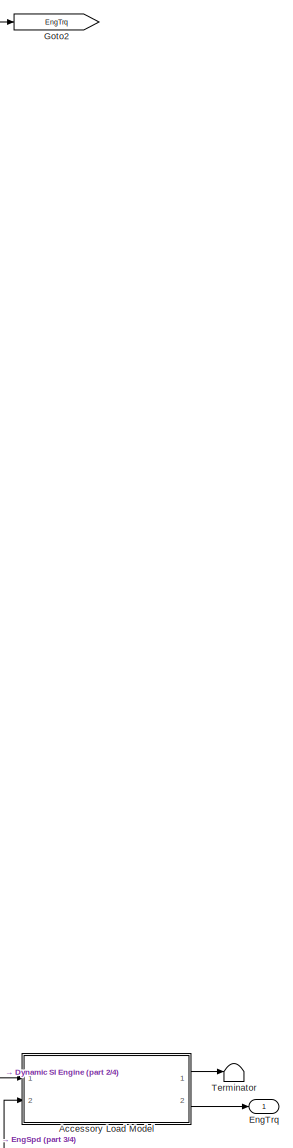
[diagram: root canvas - part 1/4, middle right region]
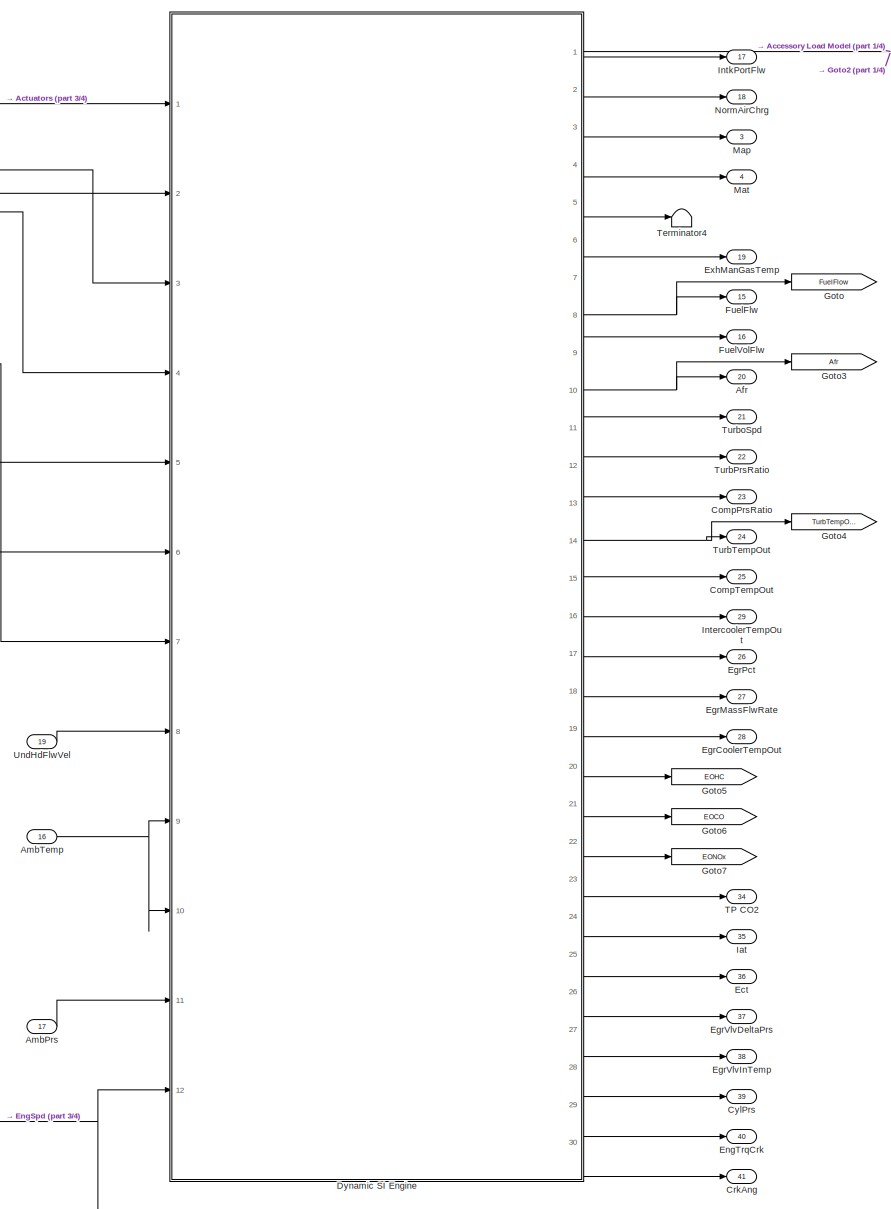
[diagram: root canvas - part 2/4, central region]
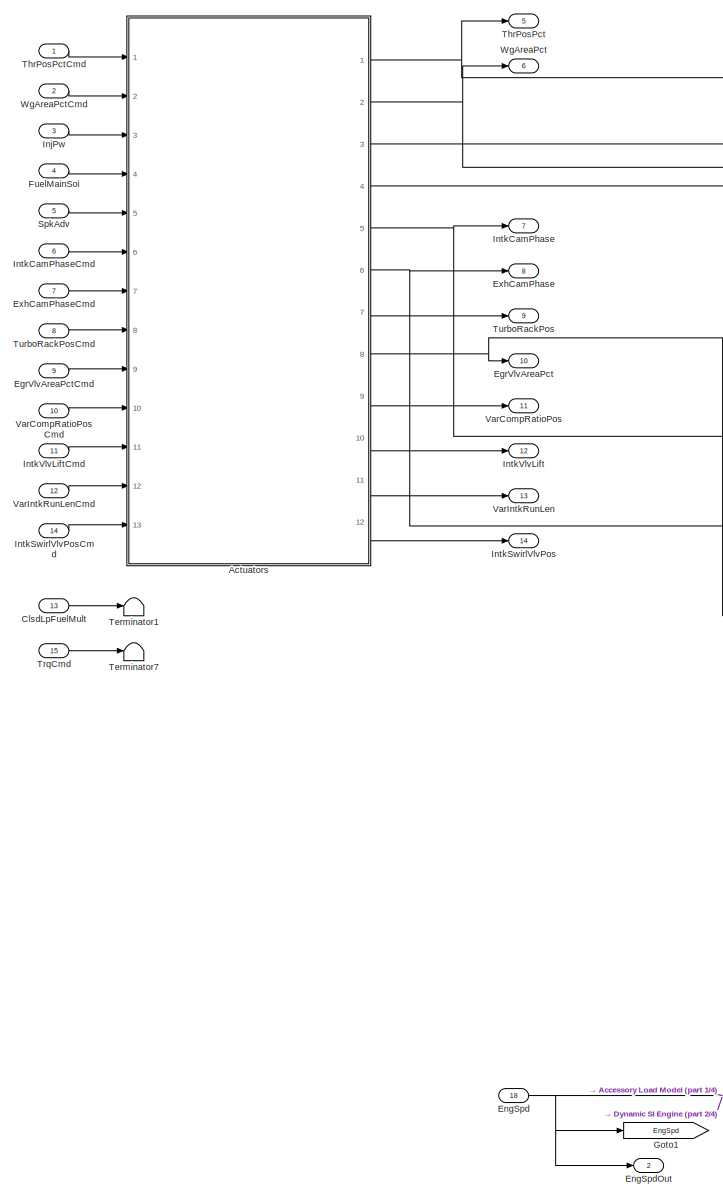
[diagram: root canvas - part 3/4, middle left region]
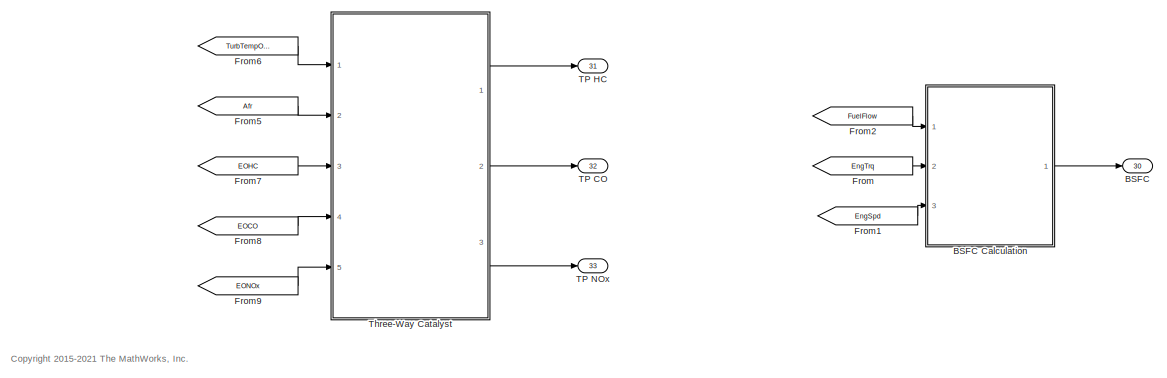
[diagram: root canvas - part 4/4, bottom right region]
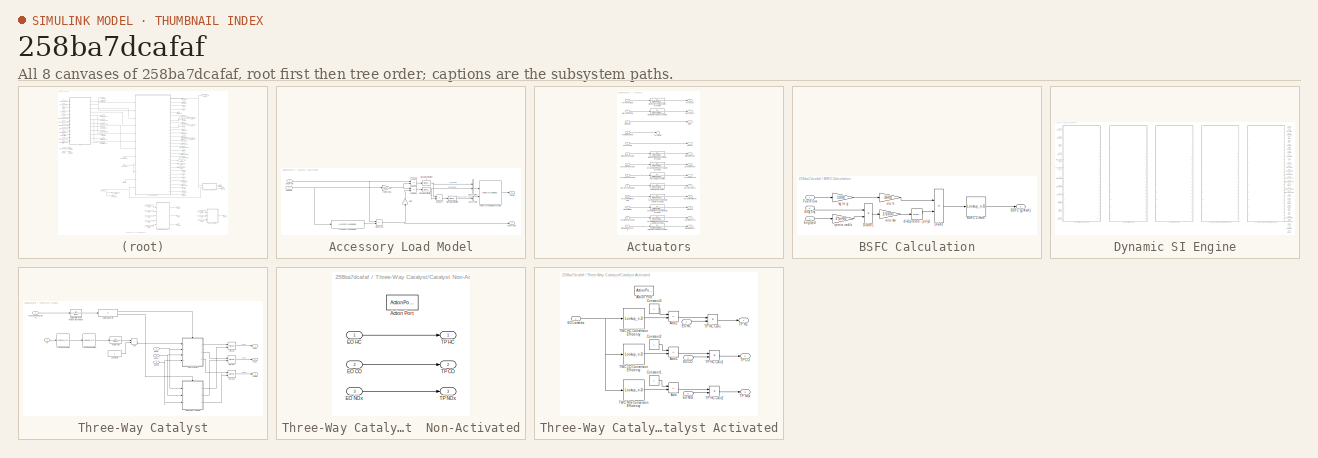
[diagram: thumbnail index - all 8 canvases of the model, root first then tree order]
MODEL slx_258ba7dcafaf
KIND model
CONFIG AbsTol = auto
CONFIG EnableMultiTasking = on
CONFIG FixedStep = auto
CONFIG InitFcn = if exist('SiEngineController') == 4\n  autoicon('autolibsiengcal',bdroot,'calAndMap');\nend
CONFIG MaxStep = auto
CONFIG MinStep = auto
CONFIG RelTol = 1e-3
CONFIG SampleTimeConstraint = Unconstrained
CONFIG SolverName = VariableStepAuto
CONFIG StartTime = 0.0
CONFIG StopTime = inf
WORKSPACE source: mxarray member
WORKSPACE AccPwrbp = [0 0]
WORKSPACE AccSpdbp = [300 750]
WORKSPACE AfrStoich = 14.6
WORKSPACE TimeCnstECP = 0.125
WORKSPACE TimeCnstEGR = 0.125
WORKSPACE TimeCnstETC = 0.085
WORKSPACE TimeCnstICP = 0.125
WORKSPACE TimeCnstIVL = 0.125
WORKSPACE TimeCnstSWVA = 0.125
WORKSPACE TimeCnstVCR = 0.125
WORKSPACE TimeCnstVGT = 0.15
WORKSPACE TimeCnstVIRL = 0.125
WORKSPACE TimeCnstWGA = 0.15
WORKSPACE f_twc_eff_co = [0.17 0.25 0.45 0.99 0.99 0.99 0.99]
WORKSPACE f_twc_eff_hc = [0.21 0.375 0.75 0.98 0.98 0.98 0.98]
WORKSPACE f_twc_eff_lam = [0.909090909 0.944055944 0.979020979 1 1.013986014 1.048951049 1.083916084]
WORKSPACE f_twc_eff_nox = [0.98 0.98 0.98 0.97 0.05 0.02 0]
BLOCK [SubSystem] Accessory Load Model
  Ports = [2, 2]
  RequestExecContextInheritance = off
BLOCK [Reference] Accessory Load Model/Accessory Load Model  REF=autolibhevctrlrcommon/Accessory Load Model
  Ports = [1, 1]
  SourceBlock = autolibhevctrlrcommon/Accessory Load Model
  SourceProductBaseCode = PW
BLOCK [BusCreator] Accessory Load Model/Bus Creator
  DisplayOption = bar
  InheritFromInputs = on
  Inputs = 1
  Ports = [1, 1]
BLOCK [BusCreator] Accessory Load Model/Bus Creator1
  DisplayOption = bar
  InheritFromInputs = on
  Inputs = 2
  Ports = [2, 1]
BLOCK [Inport] Accessory Load Model/EngSpd
  Port = 2
BLOCK [Inport] Accessory Load Model/EngTrqIn
BLOCK [Outport] Accessory Load Model/EngTrqOut
  Port = 2
  Unit = N*m
  VectorParamsAs1DForOutWhenUnconnected = off
BLOCK [Gain] Accessory Load Model/Gain
  Gain = -1
  NameLocation = right
BLOCK [Sum] Accessory Load Model/Net Torque
  IconShape = rectangular
  Inputs = +-
  Ports = [2, 1]
BLOCK [Reference] Accessory Load Model/Power Accounting Bus Creator  REF=autolibpowerinfoutils/Power Accounting Bus Creator
  Ports = [2, 1]
  SourceBlock = autolibpowerinfoutils/Power Accounting Bus Creator
  SourceProductBaseCode = PW,DR,MT,UV,VE
  SourceType = Power Accounting Bus Creator
BLOCK [Product] Accessory Load Model/Product
  Ports = [2, 1]
BLOCK [Product] Accessory Load Model/Product1
  Ports = [2, 1]
BLOCK [Outport] Accessory Load Model/PwrInfo
  VectorParamsAs1DForOutWhenUnconnected = off
BLOCK [SignalSpecification] Accessory Load Model/Signal Specification
  Unit = W
BLOCK [SignalSpecification] Accessory Load Model/Signal Specification1
  Unit = W
BLOCK [SignalSpecification] Accessory Load Model/Signal Specification2
  Unit = W
BLOCK [Sum] Accessory Load Model/Subtract
  IconShape = rectangular
  Inputs = --
  Ports = [2, 1]
BLOCK [Gain] Accessory Load Model/rpm to rad//s1
  Gain = pi/30
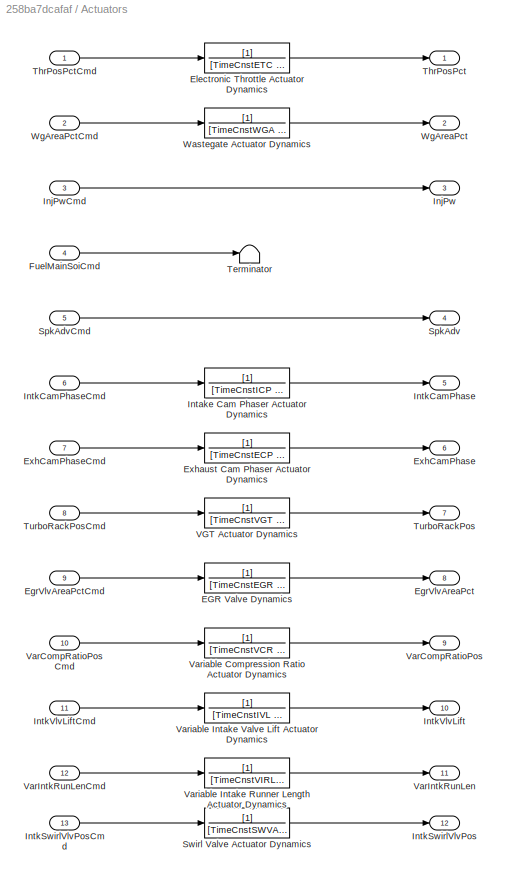
BLOCK [SubSystem] Actuators
  Ports = [13, 12]
  RequestExecContextInheritance = off
BLOCK [TransferFcn] Actuators/EGR Valve Dynamics
  Denominator = [TimeCnstEGR 1]
BLOCK [Outport] Actuators/EgrVlvAreaPct
  Port = 8
  Unit = %
  VectorParamsAs1DForOutWhenUnconnected = off
BLOCK [Inport] Actuators/EgrVlvAreaPctCmd
  Port = 9
  Unit = %
BLOCK [TransferFcn] Actuators/Electronic Throttle Actuator Dynamics
  Denominator = [TimeCnstETC 1]
BLOCK [Outport] Actuators/ExhCamPhase
  Port = 6
  Unit = deg
  VectorParamsAs1DForOutWhenUnconnected = off
BLOCK [Inport] Actuators/ExhCamPhaseCmd
  Port = 7
  Unit = deg
BLOCK [TransferFcn] Actuators/Exhaust Cam Phaser Actuator Dynamics
  Denominator = [TimeCnstECP 1]
BLOCK [Inport] Actuators/FuelMainSoiCmd
  Port = 4
  Unit = deg
BLOCK [Outport] Actuators/InjPw
  Port = 3
  VectorParamsAs1DForOutWhenUnconnected = off
BLOCK [Inport] Actuators/InjPwCmd
  Port = 3
  Unit = ms
BLOCK [TransferFcn] Actuators/Intake Cam Phaser Actuator Dynamics
  Denominator = [TimeCnstICP 1]
BLOCK [Outport] Actuators/IntkCamPhase
  Port = 5
  Unit = deg
  VectorParamsAs1DForOutWhenUnconnected = off
BLOCK [Inport] Actuators/IntkCamPhaseCmd
  Port = 6
  Unit = deg
BLOCK [Outport] Actuators/IntkSwirlVlvPos
  Port = 12
  VectorParamsAs1DForOutWhenUnconnected = off
BLOCK [Inport] Actuators/IntkSwirlVlvPosCmd
  Port = 13
BLOCK [Outport] Actuators/IntkVlvLift
  Port = 10
  VectorParamsAs1DForOutWhenUnconnected = off
BLOCK [Inport] Actuators/IntkVlvLiftCmd
  Port = 11
BLOCK [Outport] Actuators/SpkAdv
  Port = 4
  VectorParamsAs1DForOutWhenUnconnected = off
BLOCK [Inport] Actuators/SpkAdvCmd
  Port = 5
  Unit = deg
BLOCK [TransferFcn] Actuators/Swirl Valve Actuator Dynamics
  Denominator = [TimeCnstSWVA 1]
BLOCK [Terminator] Actuators/Terminator
BLOCK [Outport] Actuators/ThrPosPct
  Unit = %
  VectorParamsAs1DForOutWhenUnconnected = off
BLOCK [Inport] Actuators/ThrPosPctCmd
  Unit = %
  VarSizeSig = No
BLOCK [Outport] Actuators/TurboRackPos
  Port = 7
  Unit = 1
  VectorParamsAs1DForOutWhenUnconnected = off
BLOCK [Inport] Actuators/TurboRackPosCmd
  Port = 8
  Unit = 1
BLOCK [TransferFcn] Actuators/VGT Actuator Dynamics
  Denominator = [TimeCnstVGT 1]
BLOCK [Outport] Actuators/VarCompRatioPos
  Port = 9
  VectorParamsAs1DForOutWhenUnconnected = off
BLOCK [Inport] Actuators/VarCompRatioPosCmd
  Port = 10
BLOCK [Outport] Actuators/VarIntkRunLen
  Port = 11
  VectorParamsAs1DForOutWhenUnconnected = off
BLOCK [Inport] Actuators/VarIntkRunLenCmd
  Port = 12
BLOCK [TransferFcn] Actuators/Variable Compression Ratio Actuator Dynamics
  Denominator = [TimeCnstVCR 1]
BLOCK [TransferFcn] Actuators/Variable Intake Runner Length Actuator Dynamics
  Denominator = [TimeCnstVIRL 1]
BLOCK [TransferFcn] Actuators/Variable Intake Valve Lift Actuator Dynamics
  Denominator = [TimeCnstIVL 1]
BLOCK [TransferFcn] Actuators/Wastegate Actuator Dynamics
  Denominator = [TimeCnstWGA 1]
BLOCK [Outport] Actuators/WgAreaPct
  Port = 2
  Unit = %
  VectorParamsAs1DForOutWhenUnconnected = off
BLOCK [Inport] Actuators/WgAreaPctCmd
  Port = 2
  Unit = %
BLOCK [Outport] Afr
  Port = 20
  VectorParamsAs1DForOutWhenUnconnected = off
BLOCK [Inport] AmbPrs
  Port = 17
BLOCK [Inport] AmbTemp
  Port = 16
BLOCK [Outport] BSFC
  Port = 30
  Unit = g/(kW*hr)
  VectorParamsAs1DForOutWhenUnconnected = off
BLOCK [SubSystem] BSFC Calculation
  Ports = [3, 1]
  RequestExecContextInheritance = off
BLOCK [Outport] BSFC Calculation/BSFC (g//Kwh)
  VectorParamsAs1DForOutWhenUnconnected = off
BLOCK [Lookup_n-D] BSFC Calculation/BSFC Limits
  BreakpointsForDimension1 = [0 500]
  ExtrapMethod = Clip
  InputPortMap = u0
  InternalRulePriority = Speed
  NumberOfTableDimensions = 1
  Ports = [1, 1]
  RndMeth = Simplest
  Table = [0 500]
BLOCK [Product] BSFC Calculation/Divide
  Inputs = */
  Ports = [2, 1]
BLOCK [Product] BSFC Calculation/Divide1
  Inputs = **
  Ports = [2, 1]
BLOCK [Inport] BSFC Calculation/EngSpd
  Port = 3
BLOCK [Inport] BSFC Calculation/EngTrq
  Port = 2
BLOCK [Inport] BSFC Calculation/FuelFlow
BLOCK [Reference] BSFC Calculation/div0protect - poly1  REF=autolibutils/div0protect - poly
  Ports = [1, 1]
  SourceBlock = autolibutils/div0protect - poly
  SourceProductBaseCode = PW,DR,MT,UV,VE
BLOCK [Gain] BSFC Calculation/kg to g
  Gain = 1000
BLOCK [Gain] BSFC Calculation/rpm to rad//s
  Gain = 2*pi/60
BLOCK [Gain] BSFC Calculation/s to h
  Gain = 3600
BLOCK [Gain] BSFC Calculation/w to kw
  Gain = 1/1000
BLOCK [Inport] ClsdLpFuelMult
  Port = 13
  Unit = 1
BLOCK [Outport] CompPrsRatio
  Port = 23
  VectorParamsAs1DForOutWhenUnconnected = off
BLOCK [Outport] CompTempOut
  Port = 25
  VectorParamsAs1DForOutWhenUnconnected = off
BLOCK [Outport] CrkAng
  Port = 41
  VectorParamsAs1DForOutWhenUnconnected = off
BLOCK [Outport] CylPrs
  Port = 39
  VectorParamsAs1DForOutWhenUnconnected = off
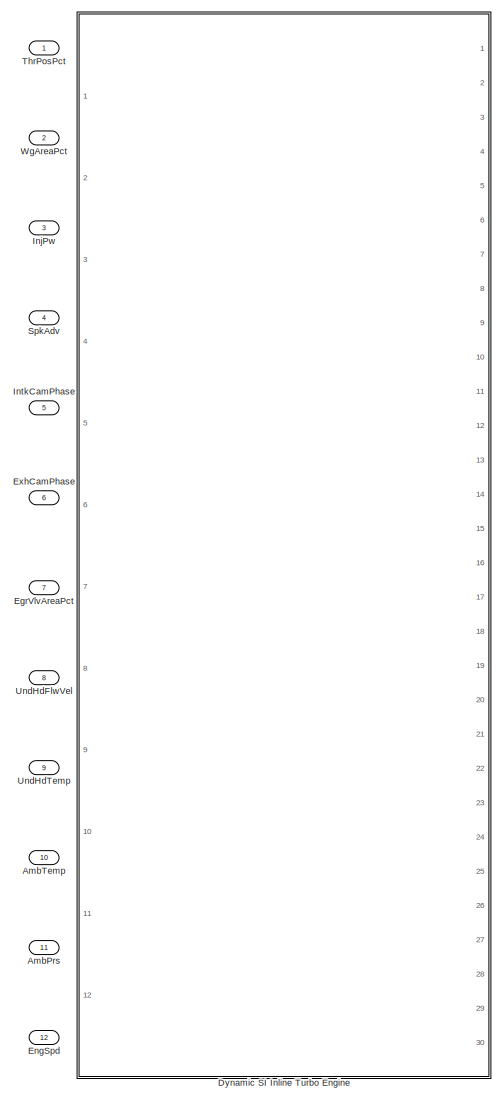
[diagram: Dynamic SI Engine - part 1/4, left side, full height]
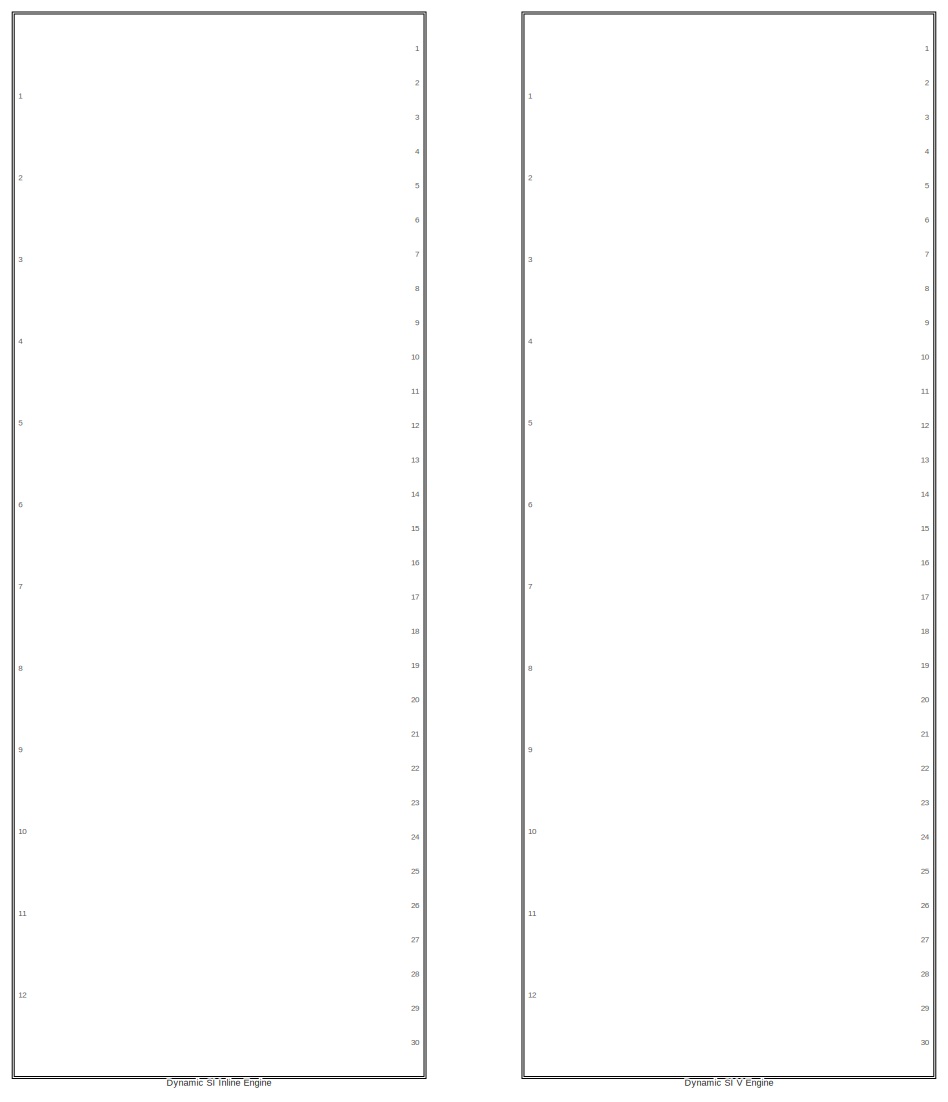
[diagram: Dynamic SI Engine - part 2/4, center side, full height]
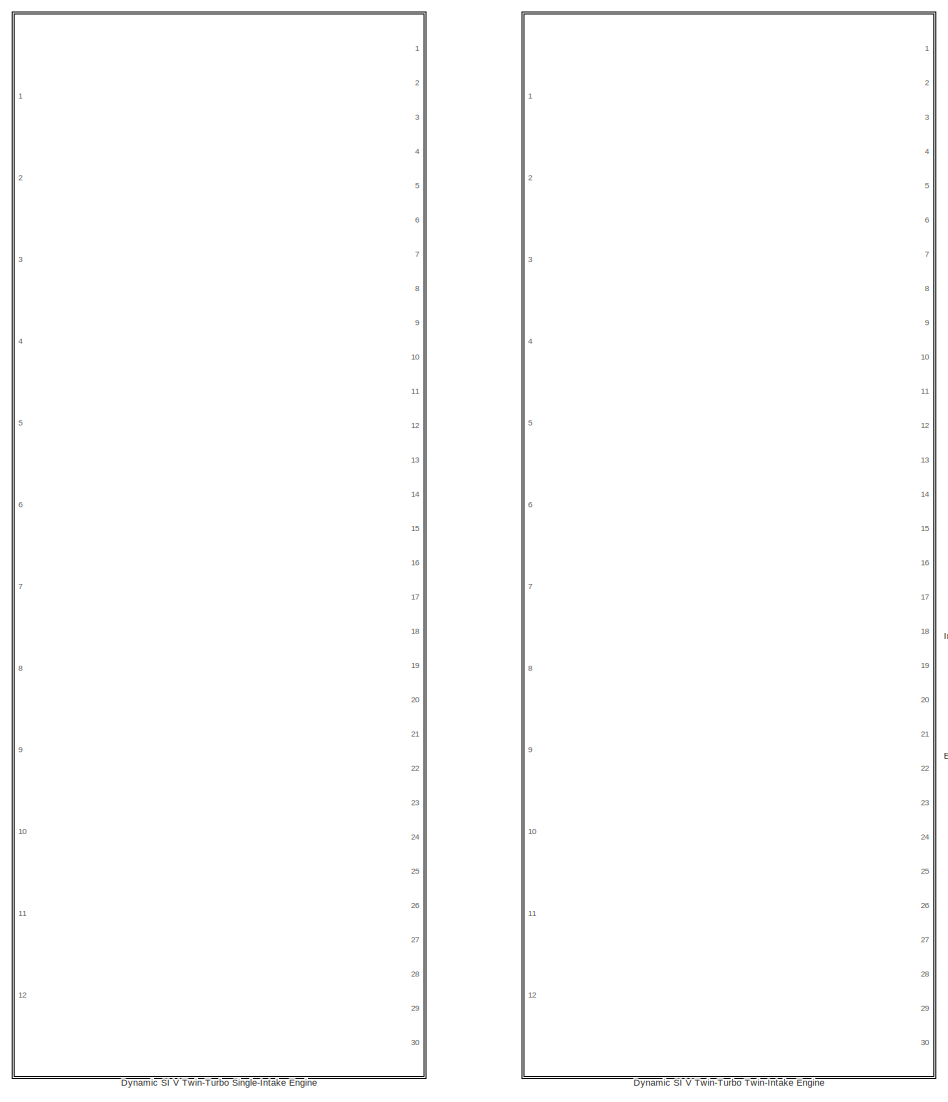
[diagram: Dynamic SI Engine - part 3/4, right side, full height]
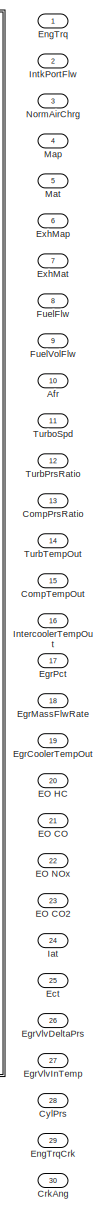
[diagram: Dynamic SI Engine - part 4/4, right side, full height]
BLOCK [SubSystem] Dynamic SI Engine
  LabelModeActiveChoice = SiEngineCore
  Ports = [12, 30]
  RequestExecContextInheritance = off
  Variant = on
  VariantControl = Choice
  VariantControlMode = label
BLOCK [Outport] Dynamic SI Engine/Afr
  Port = 10
BLOCK [Inport] Dynamic SI Engine/AmbPrs
  Port = 11
BLOCK [Inport] Dynamic SI Engine/AmbTemp
  Port = 10
BLOCK [Outport] Dynamic SI Engine/CompPrsRatio
  Port = 13
BLOCK [Outport] Dynamic SI Engine/CompTempOut
  Port = 15
BLOCK [Outport] Dynamic SI Engine/CrkAng
  Port = 30
  VectorParamsAs1DForOutWhenUnconnected = off
BLOCK [Outport] Dynamic SI Engine/CylPrs
  Port = 28
  VectorParamsAs1DForOutWhenUnconnected = off
BLOCK [ModelReference] Dynamic SI Engine/Dynamic SI Inline Engine
  ModelNameDialog = SiEngineCoreNA.slx
  ModelReferenceVersion = 1.677
  Ports = [12, 30]
  VariantControl = SiEngineCoreNA
BLOCK [ModelReference] Dynamic SI Engine/Dynamic SI Inline Turbo Engine
  ModelNameDialog = SiEngineCore.slx
  ModelReferenceVersion = 2.1
  Ports = [12, 30]
  VariantControl = SiEngineCore
BLOCK [ModelReference] Dynamic SI Engine/Dynamic SI V Engine
  ModelNameDialog = SiEngineCoreVNA.slx
  ModelReferenceVersion = 1.720
  Ports = [12, 30]
  VariantControl = SiEngineCoreVNA
BLOCK [ModelReference] Dynamic SI Engine/Dynamic SI V Twin-Turbo Single-Intake Engine
  ModelNameDialog = SiEngineCoreV.slx
  ModelReferenceVersion = 1.716
  Ports = [12, 30]
  VariantControl = SiEngineCoreV
BLOCK [ModelReference] Dynamic SI Engine/Dynamic SI V Twin-Turbo Twin-Intake Engine
  ModelNameDialog = SiEngineCoreVThr2.slx
  ModelReferenceVersion = 1.691
  Ports = [12, 30]
  VariantControl = SiEngineCoreVThr2
BLOCK [Outport] Dynamic SI Engine/EO CO
  Port = 21
BLOCK [Outport] Dynamic SI Engine/EO CO2
  Port = 23
BLOCK [Outport] Dynamic SI Engine/EO HC
  Port = 20
BLOCK [Outport] Dynamic SI Engine/EO NOx
  Port = 22
BLOCK [Outport] Dynamic SI Engine/Ect
  Port = 25
BLOCK [Outport] Dynamic SI Engine/EgrCoolerTempOut
  Port = 19
BLOCK [Outport] Dynamic SI Engine/EgrMassFlwRate
  Port = 18
BLOCK [Outport] Dynamic SI Engine/EgrPct
  Port = 17
BLOCK [Inport] Dynamic SI Engine/EgrVlvAreaPct
  Port = 7
BLOCK [Outport] Dynamic SI Engine/EgrVlvDeltaPrs
  Port = 26
BLOCK [Outport] Dynamic SI Engine/EgrVlvInTemp
  Port = 27
BLOCK [Inport] Dynamic SI Engine/EngSpd
  Port = 12
BLOCK [Outport] Dynamic SI Engine/EngTrq
BLOCK [Outport] Dynamic SI Engine/EngTrqCrk
  Port = 29
  VectorParamsAs1DForOutWhenUnconnected = off
BLOCK [Inport] Dynamic SI Engine/ExhCamPhase
  Port = 6
BLOCK [Outport] Dynamic SI Engine/ExhMap
  Port = 6
BLOCK [Outport] Dynamic SI Engine/ExhMat
  Port = 7
BLOCK [Outport] Dynamic SI Engine/FuelFlw
  Port = 8
BLOCK [Outport] Dynamic SI Engine/FuelVolFlw
  Port = 9
BLOCK [Outport] Dynamic SI Engine/Iat
  Port = 24
BLOCK [Inport] Dynamic SI Engine/InjPw
  Port = 3
BLOCK [Outport] Dynamic SI Engine/IntercoolerTempOut
  Port = 16
BLOCK [Inport] Dynamic SI Engine/IntkCamPhase
  Port = 5
BLOCK [Outport] Dynamic SI Engine/IntkPortFlw
  Port = 2
BLOCK [Outport] Dynamic SI Engine/Map
  Port = 4
BLOCK [Outport] Dynamic SI Engine/Mat
  Port = 5
BLOCK [Outport] Dynamic SI Engine/NormAirChrg
  Port = 3
BLOCK [Inport] Dynamic SI Engine/SpkAdv
  Port = 4
BLOCK [Inport] Dynamic SI Engine/ThrPosPct
BLOCK [Outport] Dynamic SI Engine/TurbPrsRatio
  Port = 12
BLOCK [Outport] Dynamic SI Engine/TurbTempOut
  Port = 14
BLOCK [Outport] Dynamic SI Engine/TurboSpd
  Port = 11
BLOCK [Inport] Dynamic SI Engine/UndHdFlwVel
  Port = 8
BLOCK [Inport] Dynamic SI Engine/UndHdTemp
  Port = 9
BLOCK [Inport] Dynamic SI Engine/WgAreaPct
  Port = 2
BLOCK [Outport] Ect
  Port = 36
  VectorParamsAs1DForOutWhenUnconnected = off
BLOCK [Outport] EgrCoolerTempOut
  Port = 28
  Unit = K
  VectorParamsAs1DForOutWhenUnconnected = off
BLOCK [Outport] EgrMassFlwRate
  Port = 27
  Unit = kg/s
  VectorParamsAs1DForOutWhenUnconnected = off
BLOCK [Outport] EgrPct
  Port = 26
  Unit = %
  VectorParamsAs1DForOutWhenUnconnected = off
BLOCK [Outport] EgrVlvAreaPct
  Port = 10
  VectorParamsAs1DForOutWhenUnconnected = off
BLOCK [Inport] EgrVlvAreaPctCmd
  Port = 9
BLOCK [Outport] EgrVlvDeltaPrs
  Port = 37
  VectorParamsAs1DForOutWhenUnconnected = off
BLOCK [Outport] EgrVlvInTemp
  Port = 38
  VectorParamsAs1DForOutWhenUnconnected = off
BLOCK [Inport] EngSpd
  Interpolate = off
  Port = 18
BLOCK [Outport] EngSpdOut
  Port = 2
  VectorParamsAs1DForOutWhenUnconnected = off
BLOCK [Outport] EngTrq
  Unit = N*m
  VectorParamsAs1DForOutWhenUnconnected = off
BLOCK [Outport] EngTrqCrk
  Port = 40
  VectorParamsAs1DForOutWhenUnconnected = off
BLOCK [Outport] ExhCamPhase
  Port = 8
  VectorParamsAs1DForOutWhenUnconnected = off
BLOCK [Inport] ExhCamPhaseCmd
  Port = 7
BLOCK [Outport] ExhManGasTemp
  Port = 19
  VectorParamsAs1DForOutWhenUnconnected = off
BLOCK [From] From
  GotoTag = EngTrq
BLOCK [From] From1
  GotoTag = EngSpd
BLOCK [From] From2
  GotoTag = FuelFlow
BLOCK [From] From5
  GotoTag = Afr
BLOCK [From] From6
  GotoTag = TurbTempOut
BLOCK [From] From7
  GotoTag = EOHC
BLOCK [From] From8
  GotoTag = EOCO
BLOCK [From] From9
  GotoTag = EONOx
BLOCK [Outport] FuelFlw
  Port = 15
  VectorParamsAs1DForOutWhenUnconnected = off
BLOCK [Inport] FuelMainSoi
  Port = 4
BLOCK [Outport] FuelVolFlw
  Port = 16
  VectorParamsAs1DForOutWhenUnconnected = off
BLOCK [Goto] Goto
  GotoTag = FuelFlow
BLOCK [Goto] Goto1
  GotoTag = EngSpd
BLOCK [Goto] Goto2
  GotoTag = EngTrq
BLOCK [Goto] Goto3
  GotoTag = Afr
BLOCK [Goto] Goto4
  GotoTag = TurbTempOut
BLOCK [Goto] Goto5
  GotoTag = EOHC
BLOCK [Goto] Goto6
  GotoTag = EOCO
BLOCK [Goto] Goto7
  GotoTag = EONOx
BLOCK [Outport] Iat
  Port = 35
  VectorParamsAs1DForOutWhenUnconnected = off
BLOCK [Inport] InjPw
  Port = 3
BLOCK [Outport] IntercoolerTempOut
  Port = 29
  VectorParamsAs1DForOutWhenUnconnected = off
BLOCK [Outport] IntkCamPhase
  Port = 7
  VectorParamsAs1DForOutWhenUnconnected = off
BLOCK [Inport] IntkCamPhaseCmd
  Port = 6
BLOCK [Outport] IntkPortFlw
  Port = 17
  VectorParamsAs1DForOutWhenUnconnected = off
BLOCK [Outport] IntkSwirlVlvPos
  Port = 14
  VectorParamsAs1DForOutWhenUnconnected = off
BLOCK [Inport] IntkSwirlVlvPosCmd
  Port = 14
BLOCK [Outport] IntkVlvLift
  Port = 12
  VectorParamsAs1DForOutWhenUnconnected = off
BLOCK [Inport] IntkVlvLiftCmd
  Port = 11
BLOCK [Outport] Map
  Port = 3
  VectorParamsAs1DForOutWhenUnconnected = off
BLOCK [Outport] Mat
  Port = 4
  VectorParamsAs1DForOutWhenUnconnected = off
BLOCK [Outport] NormAirChrg
  Port = 18
  VectorParamsAs1DForOutWhenUnconnected = off
BLOCK [Inport] SpkAdv
  Port = 5
BLOCK [Outport] TP CO
  Port = 32
  VectorParamsAs1DForOutWhenUnconnected = off
BLOCK [Outport] TP CO2
  Port = 34
  VectorParamsAs1DForOutWhenUnconnected = off
BLOCK [Outport] TP HC
  Port = 31
  VectorParamsAs1DForOutWhenUnconnected = off
BLOCK [Outport] TP NOx
  Port = 33
  VectorParamsAs1DForOutWhenUnconnected = off
BLOCK [Terminator] Terminator
BLOCK [Terminator] Terminator1
BLOCK [Terminator] Terminator4
BLOCK [Terminator] Terminator7
BLOCK [Outport] ThrPosPct
  Port = 5
  VectorParamsAs1DForOutWhenUnconnected = off
BLOCK [Inport] ThrPosPctCmd
  VarSizeSig = No
BLOCK [SubSystem] Three-Way Catalyst
  Ports = [5, 3]
  RequestExecContextInheritance = off
BLOCK [Lookup_n-D] Three-Way Catalyst/1-D Lookup Table
  BreakpointsForDimension1 = [0 15 100]
  ExtrapMethod = Clip
  InputPortMap = u0
  InternalRulePriority = Speed
  NumberOfTableDimensions = 1
  Ports = [1, 1]
  RndMeth = Simplest
  Table = [0 15 AfrStoich]/AfrStoich
BLOCK [Lookup_n-D] Three-Way Catalyst/1-D Lookup Table1
  BreakpointsForDimension1 = [0 0.97 1.03 1.1]
  ExtrapMethod = Clip
  InputPortMap = u0
  InternalRulePriority = Speed
  NumberOfTableDimensions = 1
  Ports = [1, 1]
  RndMeth = Simplest
  Table = [-1 0 0 0.07]
BLOCK [Sum] Three-Way Catalyst/Add
  IconShape = rectangular
  Ports = [2, 1]
BLOCK [Inport] Three-Way Catalyst/Afr
  Port = 2
BLOCK [SubSystem] Three-Way Catalyst/Catalyst  Non-Activated
  Ports = [3, 3, 0, 0, 0, 0, 0, 1]
  RequestExecContextInheritance = off
BLOCK [ActionPort] Three-Way Catalyst/Catalyst  Non-Activated/Action Port
  ActionPortLabel = else
BLOCK [Inport] Three-Way Catalyst/Catalyst  Non-Activated/EO CO
  Port = 2
BLOCK [Inport] Three-Way Catalyst/Catalyst  Non-Activated/EO HC
BLOCK [Inport] Three-Way Catalyst/Catalyst  Non-Activated/EO NOx
  Port = 3
BLOCK [Outport] Three-Way Catalyst/Catalyst  Non-Activated/TP CO
  Port = 2
  VectorParamsAs1DForOutWhenUnconnected = off
BLOCK [Outport] Three-Way Catalyst/Catalyst  Non-Activated/TP HC
  VectorParamsAs1DForOutWhenUnconnected = off
BLOCK [Outport] Three-Way Catalyst/Catalyst  Non-Activated/TP NOx
  Port = 3
  VectorParamsAs1DForOutWhenUnconnected = off
BLOCK [SubSystem] Three-Way Catalyst/Catalyst Activated
  Ports = [4, 3, 0, 0, 0, 0, 0, 1]
  RequestExecContextInheritance = off
BLOCK [ActionPort] Three-Way Catalyst/Catalyst Activated/Action Port
  ActionPortLabel = if(u1 > 573.15)
BLOCK [Sum] Three-Way Catalyst/Catalyst Activated/Add
  IconShape = rectangular
  Inputs = +-
  Ports = [2, 1]
BLOCK [Sum] Three-Way Catalyst/Catalyst Activated/Add1
  IconShape = rectangular
  Inputs = +-
  Ports = [2, 1]
BLOCK [Sum] Three-Way Catalyst/Catalyst Activated/Add2
  IconShape = rectangular
  Inputs = +-
  Ports = [2, 1]
BLOCK [Constant] Three-Way Catalyst/Catalyst Activated/Constant1
BLOCK [Constant] Three-Way Catalyst/Catalyst Activated/Constant2
BLOCK [Constant] Three-Way Catalyst/Catalyst Activated/Constant3
BLOCK [Inport] Three-Way Catalyst/Catalyst Activated/EO CO
  Port = 3
BLOCK [Inport] Three-Way Catalyst/Catalyst Activated/EO HC
  Port = 2
BLOCK [Inport] Three-Way Catalyst/Catalyst Activated/EO Lambda
BLOCK [Inport] Three-Way Catalyst/Catalyst Activated/EO NOx
  Port = 4
BLOCK [Outport] Three-Way Catalyst/Catalyst Activated/TP CO
  Port = 2
  VectorParamsAs1DForOutWhenUnconnected = off
BLOCK [Outport] Three-Way Catalyst/Catalyst Activated/TP HC
  VectorParamsAs1DForOutWhenUnconnected = off
BLOCK [Product] Three-Way Catalyst/Catalyst Activated/TP HC Calc
  Inputs = **
  Ports = [2, 1]
BLOCK [Product] Three-Way Catalyst/Catalyst Activated/TP HC Calc1
  Inputs = **
  Ports = [2, 1]
BLOCK [Product] Three-Way Catalyst/Catalyst Activated/TP HC Calc2
  Inputs = **
  Ports = [2, 1]
BLOCK [Outport] Three-Way Catalyst/Catalyst Activated/TP NOx
  Port = 3
  VectorParamsAs1DForOutWhenUnconnected = off
BLOCK [Lookup_n-D] Three-Way Catalyst/Catalyst Activated/TWC CO Conversion Efficiency
  BreakpointsForDimension1 = f_twc_eff_lam
  ExtrapMethod = Clip
  InputPortMap = u0
  InternalRulePriority = Speed
  LookupTableObject = ''
  NumberOfTableDimensions = 1
  Ports = [1, 1]
  RndMeth = Simplest
  Table = f_twc_eff_co
BLOCK [Lookup_n-D] Three-Way Catalyst/Catalyst Activated/TWC HC Conversion Efficiency
  BreakpointsForDimension1 = f_twc_eff_lam
  ExtrapMethod = Clip
  InputPortMap = u0
  InternalRulePriority = Speed
  LookupTableObject = ''
  NumberOfTableDimensions = 1
  Ports = [1, 1]
  RndMeth = Simplest
  Table = f_twc_eff_hc
BLOCK [Lookup_n-D] Three-Way Catalyst/Catalyst Activated/TWC NOx Conversion Efficiency
  BreakpointsForDimension1 = f_twc_eff_lam
  ExtrapMethod = Clip
  InputPortMap = u0
  InternalRulePriority = Speed
  LookupTableObject = ''
  NumberOfTableDimensions = 1
  Ports = [1, 1]
  RndMeth = Simplest
  Table = f_twc_eff_nox
BLOCK [If] Three-Way Catalyst/Catalyst Light-Off
  IfExpression = u1 > 573.15
  Ports = [1, 2]
BLOCK [TransferFcn] Three-Way Catalyst/Catalyst Mid-Brick Temperature Model 
  Denominator = [10 1]
BLOCK [Constant] Three-Way Catalyst/Constant1
BLOCK [Inport] Three-Way Catalyst/EO CO
  Port = 4
BLOCK [Inport] Three-Way Catalyst/EO HC
  Port = 3
BLOCK [Inport] Three-Way Catalyst/EO NOx
  Port = 5
BLOCK [Inport] Three-Way Catalyst/Exhaust Temperature
BLOCK [Merge] Three-Way Catalyst/Merge
  Ports = [2, 1]
BLOCK [Merge] Three-Way Catalyst/Merge1
  Ports = [2, 1]
BLOCK [Merge] Three-Way Catalyst/Merge2
  Ports = [2, 1]
BLOCK [TransferFcn] Three-Way Catalyst/O2 Storage
  Denominator = [0.1 1]
BLOCK [Outport] Three-Way Catalyst/TP CO
  Port = 2
  Unit = kg/s
  VectorParamsAs1DForOutWhenUnconnected = off
BLOCK [Outport] Three-Way Catalyst/TP HC
  Unit = kg/s
  VectorParamsAs1DForOutWhenUnconnected = off
BLOCK [Outport] Three-Way Catalyst/TP NOx
  Port = 3
  Unit = kg/s
  VectorParamsAs1DForOutWhenUnconnected = off
BLOCK [Inport] TrqCmd
  Port = 15
  Unit = N*m
BLOCK [Outport] TurbPrsRatio
  Port = 22
  VectorParamsAs1DForOutWhenUnconnected = off
BLOCK [Outport] TurbTempOut
  Port = 24
  VectorParamsAs1DForOutWhenUnconnected = off
BLOCK [Outport] TurboRackPos
  Port = 9
  VectorParamsAs1DForOutWhenUnconnected = off
BLOCK [Inport] TurboRackPosCmd
  Port = 8
BLOCK [Outport] TurboSpd
  Port = 21
  VectorParamsAs1DForOutWhenUnconnected = off
BLOCK [Inport] UndHdFlwVel
  Port = 19
BLOCK [Outport] VarCompRatioPos
  Port = 11
  VectorParamsAs1DForOutWhenUnconnected = off
BLOCK [Inport] VarCompRatioPosCmd
  Port = 10
BLOCK [Outport] VarIntkRunLen
  Port = 13
  VectorParamsAs1DForOutWhenUnconnected = off
BLOCK [Inport] VarIntkRunLenCmd
  Port = 12
BLOCK [Outport] WgAreaPct
  Port = 6
  VectorParamsAs1DForOutWhenUnconnected = off
BLOCK [Inport] WgAreaPctCmd
  Port = 2
ANNOTATION (root): <copyright redacted>
LINE Accessory Load Model/Accessory Load Model:1 -> Accessory Load Model/Net Torque:2
LINE Accessory Load Model/Bus Creator1:1 -> Accessory Load Model/Power Accounting Bus Creator:1
LINE Accessory Load Model/Bus Creator:1 -> Accessory Load Model/Power Accounting Bus Creator:2
NET Accessory Load Model/EngSpd:1 -> Accessory Load Model/Accessory Load Model:1, Accessory Load Model/rpm to rad//s1:1
NET Accessory Load Model/EngTrqIn:1 -> Accessory Load Model/Net Torque:1, Accessory Load Model/Product1:1
LINE Accessory Load Model/Gain:1 -> Accessory Load Model/Product:2
NET Accessory Load Model/Net Torque:1 -> Accessory Load Model/EngTrqOut:1, Accessory Load Model/Gain:1
LINE Accessory Load Model/Power Accounting Bus Creator:1 -> Accessory Load Model/PwrInfo:1
LINE Accessory Load Model/Product1:1 -> Accessory Load Model/Signal Specification1:1
LINE Accessory Load Model/Product:1 -> Accessory Load Model/Signal Specification2:1
NET Accessory Load Model/Signal Specification1:1 -> Accessory Load Model/Bus Creator1:1, Accessory Load Model/Subtract:1
NET Accessory Load Model/Signal Specification2:1 -> Accessory Load Model/Bus Creator1:2, Accessory Load Model/Subtract:2
LINE Accessory Load Model/Signal Specification:1 -> Accessory Load Model/Bus Creator:1
LINE Accessory Load Model/Subtract:1 -> Accessory Load Model/Signal Specification:1
NET Accessory Load Model/rpm to rad//s1:1 -> Accessory Load Model/Product1:2, Accessory Load Model/Product:1
LINE Accessory Load Model:1 -> Terminator:1
LINE Accessory Load Model:2 -> EngTrq:1
LINE Actuators/EGR Valve Dynamics:1 -> Actuators/EgrVlvAreaPct:1
LINE Actuators/EgrVlvAreaPctCmd:1 -> Actuators/EGR Valve Dynamics:1
LINE Actuators/Electronic Throttle Actuator Dynamics:1 -> Actuators/ThrPosPct:1
LINE Actuators/ExhCamPhaseCmd:1 -> Actuators/Exhaust Cam Phaser Actuator Dynamics:1
LINE Actuators/Exhaust Cam Phaser Actuator Dynamics:1 -> Actuators/ExhCamPhase:1
LINE Actuators/FuelMainSoiCmd:1 -> Actuators/Terminator:1
LINE Actuators/InjPwCmd:1 -> Actuators/InjPw:1
LINE Actuators/Intake Cam Phaser Actuator Dynamics:1 -> Actuators/IntkCamPhase:1
LINE Actuators/IntkCamPhaseCmd:1 -> Actuators/Intake Cam Phaser Actuator Dynamics:1
LINE Actuators/IntkSwirlVlvPosCmd:1 -> Actuators/Swirl Valve Actuator Dynamics:1
LINE Actuators/IntkVlvLiftCmd:1 -> Actuators/Variable Intake Valve Lift Actuator Dynamics:1
LINE Actuators/SpkAdvCmd:1 -> Actuators/SpkAdv:1
LINE Actuators/Swirl Valve Actuator Dynamics:1 -> Actuators/IntkSwirlVlvPos:1
LINE Actuators/ThrPosPctCmd:1 -> Actuators/Electronic Throttle Actuator Dynamics:1
LINE Actuators/TurboRackPosCmd:1 -> Actuators/VGT Actuator Dynamics:1
LINE Actuators/VGT Actuator Dynamics:1 -> Actuators/TurboRackPos:1
LINE Actuators/VarCompRatioPosCmd:1 -> Actuators/Variable Compression Ratio Actuator Dynamics:1
LINE Actuators/VarIntkRunLenCmd:1 -> Actuators/Variable Intake Runner Length Actuator Dynamics:1
LINE Actuators/Variable Compression Ratio Actuator Dynamics:1 -> Actuators/VarCompRatioPos:1
LINE Actuators/Variable Intake Runner Length Actuator Dynamics:1 -> Actuators/VarIntkRunLen:1
LINE Actuators/Variable Intake Valve Lift Actuator Dynamics:1 -> Actuators/IntkVlvLift:1
LINE Actuators/Wastegate Actuator Dynamics:1 -> Actuators/WgAreaPct:1
LINE Actuators/WgAreaPctCmd:1 -> Actuators/Wastegate Actuator Dynamics:1
NET Actuators:1 -> Dynamic SI Engine:1, ThrPosPct:1
LINE Actuators:10 -> IntkVlvLift:1
LINE Actuators:11 -> VarIntkRunLen:1
LINE Actuators:12 -> IntkSwirlVlvPos:1
NET Actuators:2 -> Dynamic SI Engine:2, WgAreaPct:1
LINE Actuators:3 -> Dynamic SI Engine:3
LINE Actuators:4 -> Dynamic SI Engine:4
NET Actuators:5 -> Dynamic SI Engine:5, IntkCamPhase:1
NET Actuators:6 -> Dynamic SI Engine:6, ExhCamPhase:1
LINE Actuators:7 -> TurboRackPos:1
NET Actuators:8 -> Dynamic SI Engine:7, EgrVlvAreaPct:1
LINE Actuators:9 -> VarCompRatioPos:1
LINE AmbPrs:1 -> Dynamic SI Engine:11
NET AmbTemp:1 -> Dynamic SI Engine:10, Dynamic SI Engine:9
LINE BSFC Calculation/BSFC Limits:1 -> BSFC Calculation/BSFC (g//Kwh):1
LINE BSFC Calculation/Divide1:1 -> BSFC Calculation/w to kw:1
LINE BSFC Calculation/Divide:1 -> BSFC Calculation/BSFC Limits:1
LINE BSFC Calculation/EngSpd:1 -> BSFC Calculation/rpm to rad//s:1
LINE BSFC Calculation/EngTrq:1 -> BSFC Calculation/Divide1:1
LINE BSFC Calculation/FuelFlow:1 -> BSFC Calculation/kg to g:1
LINE BSFC Calculation/div0protect - poly1:1 -> BSFC Calculation/Divide:2
LINE BSFC Calculation/kg to g:1 -> BSFC Calculation/s to h:1
LINE BSFC Calculation/rpm to rad//s:1 -> BSFC Calculation/Divide1:2
LINE BSFC Calculation/s to h:1 -> BSFC Calculation/Divide:1
LINE BSFC Calculation/w to kw:1 -> BSFC Calculation/div0protect - poly1:1
LINE BSFC Calculation:1 -> BSFC:1
LINE ClsdLpFuelMult:1 -> Terminator1:1
NET Dynamic SI Engine:1 -> Accessory Load Model:1, Goto2:1
NET Dynamic SI Engine:10 -> Afr:1, Goto3:1
LINE Dynamic SI Engine:11 -> TurboSpd:1
LINE Dynamic SI Engine:12 -> TurbPrsRatio:1
LINE Dynamic SI Engine:13 -> CompPrsRatio:1
NET Dynamic SI Engine:14 -> Goto4:1, TurbTempOut:1
LINE Dynamic SI Engine:15 -> CompTempOut:1
LINE Dynamic SI Engine:16 -> IntercoolerTempOut:1
LINE Dynamic SI Engine:17 -> EgrPct:1
LINE Dynamic SI Engine:18 -> EgrMassFlwRate:1
LINE Dynamic SI Engine:19 -> EgrCoolerTempOut:1
LINE Dynamic SI Engine:2 -> IntkPortFlw:1
LINE Dynamic SI Engine:20 -> Goto5:1
LINE Dynamic SI Engine:21 -> Goto6:1
LINE Dynamic SI Engine:22 -> Goto7:1
LINE Dynamic SI Engine:23 -> TP CO2:1
LINE Dynamic SI Engine:24 -> Iat:1
LINE Dynamic SI Engine:25 -> Ect:1
LINE Dynamic SI Engine:26 -> EgrVlvDeltaPrs:1
LINE Dynamic SI Engine:27 -> EgrVlvInTemp:1
LINE Dynamic SI Engine:28 -> CylPrs:1
LINE Dynamic SI Engine:29 -> EngTrqCrk:1
LINE Dynamic SI Engine:3 -> NormAirChrg:1
LINE Dynamic SI Engine:30 -> CrkAng:1
LINE Dynamic SI Engine:4 -> Map:1
LINE Dynamic SI Engine:5 -> Mat:1
LINE Dynamic SI Engine:6 -> Terminator4:1
LINE Dynamic SI Engine:7 -> ExhManGasTemp:1
NET Dynamic SI Engine:8 -> FuelFlw:1, Goto:1
LINE Dynamic SI Engine:9 -> FuelVolFlw:1
LINE EgrVlvAreaPctCmd:1 -> Actuators:9
NET EngSpd:1 -> Accessory Load Model:2, Dynamic SI Engine:12, EngSpdOut:1, Goto1:1
LINE ExhCamPhaseCmd:1 -> Actuators:7
LINE From1:1 -> BSFC Calculation:3
LINE From2:1 -> BSFC Calculation:1
LINE From5:1 -> Three-Way Catalyst:2
LINE From6:1 -> Three-Way Catalyst:1
LINE From7:1 -> Three-Way Catalyst:3
LINE From8:1 -> Three-Way Catalyst:4
LINE From9:1 -> Three-Way Catalyst:5
LINE From:1 -> BSFC Calculation:2
LINE FuelMainSoi:1 -> Actuators:4
LINE InjPw:1 -> Actuators:3
LINE IntkCamPhaseCmd:1 -> Actuators:6
LINE IntkSwirlVlvPosCmd:1 -> Actuators:13
LINE IntkVlvLiftCmd:1 -> Actuators:11
LINE SpkAdv:1 -> Actuators:5
LINE ThrPosPctCmd:1 -> Actuators:1
LINE Three-Way Catalyst/1-D Lookup Table1:1 -> Three-Way Catalyst/O2 Storage:1
LINE Three-Way Catalyst/1-D Lookup Table:1 -> Three-Way Catalyst/1-D Lookup Table1:1
LINE Three-Way Catalyst/Add:1 -> Three-Way Catalyst/Catalyst Activated:1
LINE Three-Way Catalyst/Afr:1 -> Three-Way Catalyst/1-D Lookup Table:1
LINE Three-Way Catalyst/Catalyst  Non-Activated/EO CO:1 -> Three-Way Catalyst/Catalyst  Non-Activated/TP CO:1
LINE Three-Way Catalyst/Catalyst  Non-Activated/EO HC:1 -> Three-Way Catalyst/Catalyst  Non-Activated/TP HC:1
LINE Three-Way Catalyst/Catalyst  Non-Activated/EO NOx:1 -> Three-Way Catalyst/Catalyst  Non-Activated/TP NOx:1
LINE Three-Way Catalyst/Catalyst  Non-Activated:1 -> Three-Way Catalyst/Merge:2
LINE Three-Way Catalyst/Catalyst  Non-Activated:2 -> Three-Way Catalyst/Merge1:2
LINE Three-Way Catalyst/Catalyst  Non-Activated:3 -> Three-Way Catalyst/Merge2:2
LINE Three-Way Catalyst/Catalyst Activated/Add1:1 -> Three-Way Catalyst/Catalyst Activated/TP HC Calc1:1
LINE Three-Way Catalyst/Catalyst Activated/Add2:1 -> Three-Way Catalyst/Catalyst Activated/TP HC Calc:1
LINE Three-Way Catalyst/Catalyst Activated/Add:1 -> Three-Way Catalyst/Catalyst Activated/TP HC Calc2:1
LINE Three-Way Catalyst/Catalyst Activated/Constant1:1 -> Three-Way Catalyst/Catalyst Activated/Add:1
LINE Three-Way Catalyst/Catalyst Activated/Constant2:1 -> Three-Way Catalyst/Catalyst Activated/Add1:1
LINE Three-Way Catalyst/Catalyst Activated/Constant3:1 -> Three-Way Catalyst/Catalyst Activated/Add2:1
LINE Three-Way Catalyst/Catalyst Activated/EO CO:1 -> Three-Way Catalyst/Catalyst Activated/TP HC Calc1:2
LINE Three-Way Catalyst/Catalyst Activated/EO HC:1 -> Three-Way Catalyst/Catalyst Activated/TP HC Calc:2
NET Three-Way Catalyst/Catalyst Activated/EO Lambda:1 -> Three-Way Catalyst/Catalyst Activated/TWC CO Conversion Efficiency:1, Three-Way Catalyst/Catalyst Activated/TWC HC Conversion Efficiency:1, Three-Way Catalyst/Catalyst Activated/TWC NOx Conversion Efficiency:1
LINE Three-Way Catalyst/Catalyst Activated/EO NOx:1 -> Three-Way Catalyst/Catalyst Activated/TP HC Calc2:2
LINE Three-Way Catalyst/Catalyst Activated/TP HC Calc1:1 -> Three-Way Catalyst/Catalyst Activated/TP CO:1
LINE Three-Way Catalyst/Catalyst Activated/TP HC Calc2:1 -> Three-Way Catalyst/Catalyst Activated/TP NOx:1
LINE Three-Way Catalyst/Catalyst Activated/TP HC Calc:1 -> Three-Way Catalyst/Catalyst Activated/TP HC:1
LINE Three-Way Catalyst/Catalyst Activated/TWC CO Conversion Efficiency:1 -> Three-Way Catalyst/Catalyst Activated/Add1:2
LINE Three-Way Catalyst/Catalyst Activated/TWC HC Conversion Efficiency:1 -> Three-Way Catalyst/Catalyst Activated/Add2:2
LINE Three-Way Catalyst/Catalyst Activated/TWC NOx Conversion Efficiency:1 -> Three-Way Catalyst/Catalyst Activated/Add:2
LINE Three-Way Catalyst/Catalyst Activated:1 -> Three-Way Catalyst/Merge:1
LINE Three-Way Catalyst/Catalyst Activated:2 -> Three-Way Catalyst/Merge1:1
LINE Three-Way Catalyst/Catalyst Activated:3 -> Three-Way Catalyst/Merge2:1
LINE Three-Way Catalyst/Catalyst Light-Off:1 -> Three-Way Catalyst/Catalyst Activated:ifaction
LINE Three-Way Catalyst/Catalyst Light-Off:2 -> Three-Way Catalyst/Catalyst  Non-Activated:ifaction
LINE Three-Way Catalyst/Catalyst Mid-Brick Temperature Model :1 -> Three-Way Catalyst/Catalyst Light-Off:1
LINE Three-Way Catalyst/Constant1:1 -> Three-Way Catalyst/Add:2
NET Three-Way Catalyst/EO CO:1 -> Three-Way Catalyst/Catalyst  Non-Activated:2, Three-Way Catalyst/Catalyst Activated:3
NET Three-Way Catalyst/EO HC:1 -> Three-Way Catalyst/Catalyst  Non-Activated:1, Three-Way Catalyst/Catalyst Activated:2
NET Three-Way Catalyst/EO NOx:1 -> Three-Way Catalyst/Catalyst  Non-Activated:3, Three-Way Catalyst/Catalyst Activated:4
LINE Three-Way Catalyst/Exhaust Temperature:1 -> Three-Way Catalyst/Catalyst Mid-Brick Temperature Model :1
LINE Three-Way Catalyst/Merge1:1 -> Three-Way Catalyst/TP CO:1
LINE Three-Way Catalyst/Merge2:1 -> Three-Way Catalyst/TP NOx:1
LINE Three-Way Catalyst/Merge:1 -> Three-Way Catalyst/TP HC:1
LINE Three-Way Catalyst/O2 Storage:1 -> Three-Way Catalyst/Add:1
LINE Three-Way Catalyst:1 -> TP HC:1
LINE Three-Way Catalyst:2 -> TP CO:1
LINE Three-Way Catalyst:3 -> TP NOx:1
LINE TrqCmd:1 -> Terminator7:1
LINE TurboRackPosCmd:1 -> Actuators:8
LINE UndHdFlwVel:1 -> Dynamic SI Engine:8
LINE VarCompRatioPosCmd:1 -> Actuators:10
LINE VarIntkRunLenCmd:1 -> Actuators:12
LINE WgAreaPctCmd:1 -> Actuators:2
note: NET lines group one-source signal fan-out (src -> all destinations, sorted); 1:1 wires keep LINE
